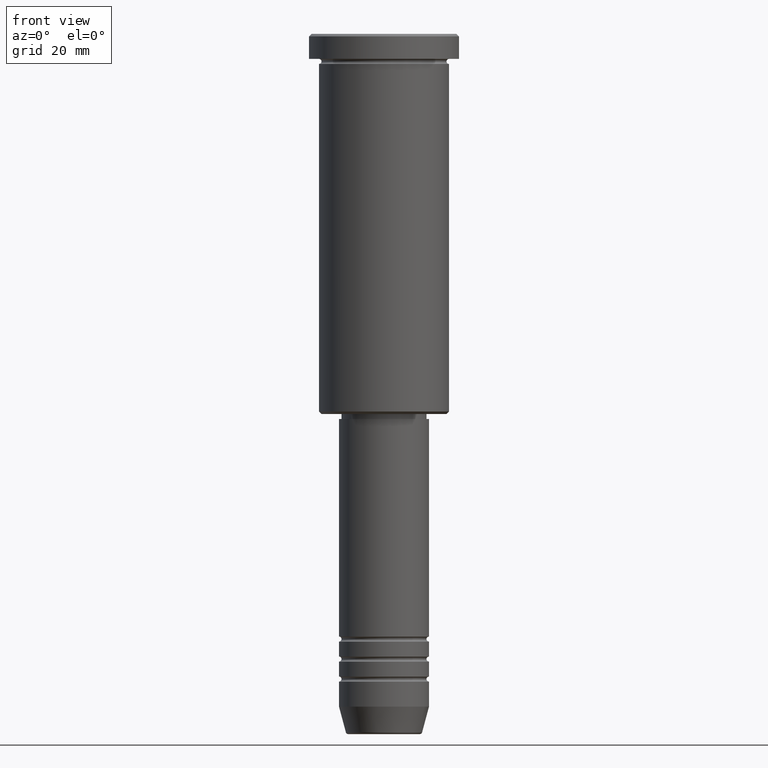
[diagram: clean part render]
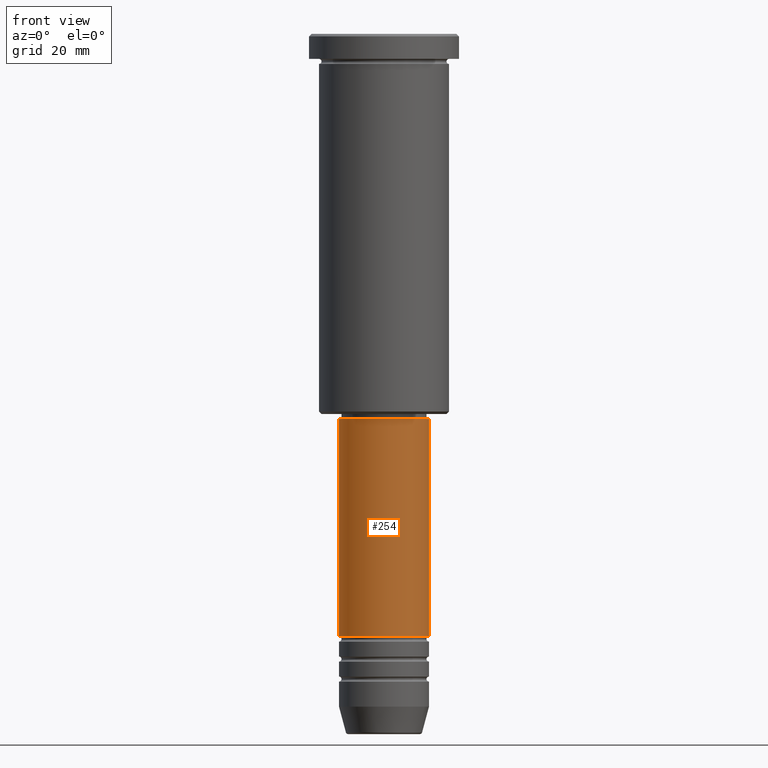
[diagram: same view with one face highlighted and labeled with its STEP entity id]
A machine part, front view. The second image highlights one B-rep face of the part: STEP entity #254.
In plain terms, the highlighted cylindrical surface (partial cylindrical patch) has radius 9 mm, axis along (-0, -0, 1).
Its self-contained STEP definition (entity closure, byte-faithful):
#28 = AXIS2_PLACEMENT_3D ( 'NONE', #294, #218, #384 ) ;
#54 = CIRCLE ( 'NONE', #1106, 9.000000000000001776 ) ;
#76 = DIRECTION ( 'NONE',  ( 1.000000000000000000, 0.000000000000000000, 0.000000000000000000 ) ) ;
#99 = EDGE_CURVE ( 'NONE', #957, #950, #1183, .T. ) ;
#154 = EDGE_CURVE ( 'NONE', #867, #475, #352, .T. ) ;
#162 = DIRECTION ( 'NONE',  ( -0.000000000000000000, -0.000000000000000000, 1.000000000000000000 ) ) ;
#172 = DIRECTION ( 'NONE',  ( -0.000000000000000000, -0.000000000000000000, 1.000000000000000000 ) ) ;
#218 = DIRECTION ( 'NONE',  ( -0.000000000000000000, -0.000000000000000000, 1.000000000000000000 ) ) ;
#237 = DIRECTION ( 'NONE',  ( -0.000000000000000000, -0.000000000000000000, 1.000000000000000000 ) ) ;
#254 = ADVANCED_FACE ( 'NONE', ( #583 ), #1116, .T. ) ;
#267 = CARTESIAN_POINT ( 'NONE',  ( -9.000000000000000000, 1.102182119232617714E-15, 0.000000000000000000 ) ) ;
#294 = CARTESIAN_POINT ( 'NONE',  ( 0.000000000000000000, 0.000000000000000000, 0.000000000000000000 ) ) ;
#352 = LINE ( 'NONE', #267, #708 ) ;
#384 = DIRECTION ( 'NONE',  ( 1.000000000000000000, 0.000000000000000000, 0.000000000000000000 ) ) ;
#430 = CARTESIAN_POINT ( 'NONE',  ( 8.999999999999998224, 0.000000000000000000, -77.00000000000004263 ) ) ;
#444 = CARTESIAN_POINT ( 'NONE',  ( 9.000000000000000000, 0.000000000000000000, 0.000000000000000000 ) ) ;
#475 = VERTEX_POINT ( 'NONE', #499 ) ;
#499 = CARTESIAN_POINT ( 'NONE',  ( -8.999999999999998224, 1.102182119232617714E-15, -77.00000000000004263 ) ) ;
#508 = EDGE_CURVE ( 'NONE', #475, #950, #509, .T. ) ;
#509 = CIRCLE ( 'NONE', #1177, 8.999999999999998224 ) ;
#516 = VECTOR ( 'NONE', #988, 1000.000000000000000 ) ;
#518 = ORIENTED_EDGE ( 'NONE', *, *, #1023, .T. ) ;
#583 = FACE_OUTER_BOUND ( 'NONE', #828, .T. ) ;
#613 = DIRECTION ( 'NONE',  ( 1.000000000000000000, 0.000000000000000000, 0.000000000000000000 ) ) ;
#681 = CARTESIAN_POINT ( 'NONE',  ( 0.000000000000000000, 0.000000000000000000, -77.00000000000004263 ) ) ;
#708 = VECTOR ( 'NONE', #172, 1000.000000000000000 ) ;
#710 = CARTESIAN_POINT ( 'NONE',  ( 0.000000000000000000, 0.000000000000000000, -120.5000000000000000 ) ) ;
#740 = ORIENTED_EDGE ( 'NONE', *, *, #154, .F. ) ;
#804 = ORIENTED_EDGE ( 'NONE', *, *, #99, .T. ) ;
#828 = EDGE_LOOP ( 'NONE', ( #740, #518, #804, #978 ) ) ;
#867 = VERTEX_POINT ( 'NONE', #972 ) ;
#950 = VERTEX_POINT ( 'NONE', #430 ) ;
#957 = VERTEX_POINT ( 'NONE', #1170 ) ;
#972 = CARTESIAN_POINT ( 'NONE',  ( -9.000000000000001776, 1.102182119232617911E-15, -120.5000000000000000 ) ) ;
#978 = ORIENTED_EDGE ( 'NONE', *, *, #508, .F. ) ;
#988 = DIRECTION ( 'NONE',  ( -0.000000000000000000, -0.000000000000000000, 1.000000000000000000 ) ) ;
#1023 = EDGE_CURVE ( 'NONE', #867, #957, #54, .T. ) ;
#1106 = AXIS2_PLACEMENT_3D ( 'NONE', #710, #162, #76 ) ;
#1116 = CYLINDRICAL_SURFACE ( 'NONE', #28, 9.000000000000000000 ) ;
#1170 = CARTESIAN_POINT ( 'NONE',  ( 9.000000000000001776, 0.000000000000000000, -120.5000000000000000 ) ) ;
#1177 = AXIS2_PLACEMENT_3D ( 'NONE', #681, #237, #613 ) ;
#1183 = LINE ( 'NONE', #444, #516 ) ;